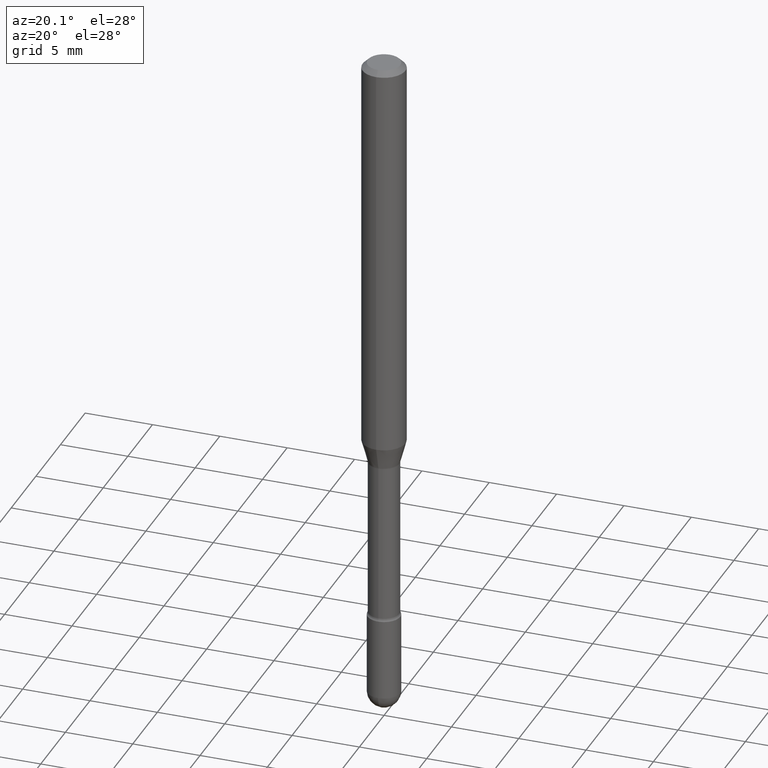
[diagram: clean part render]
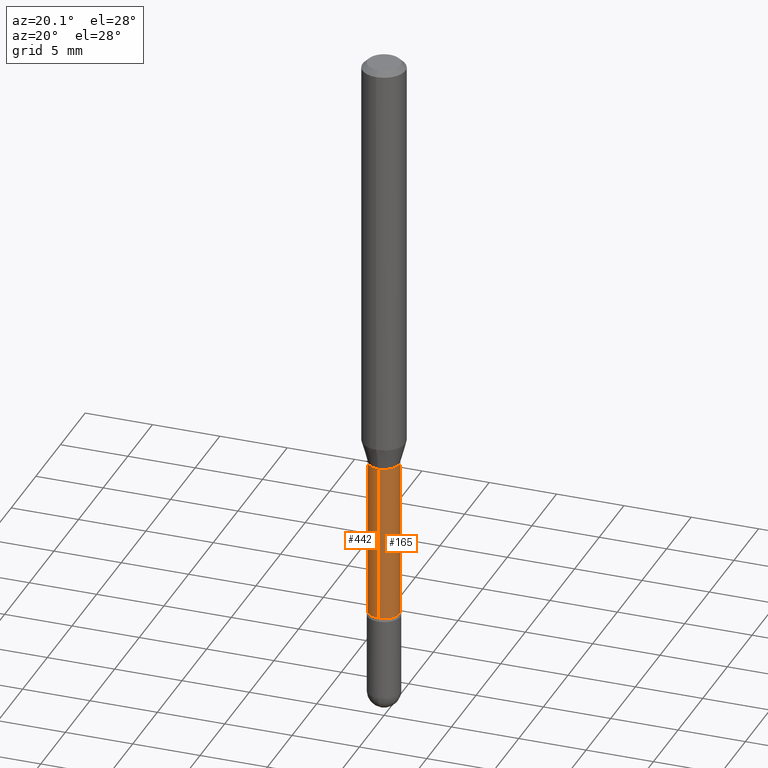
[diagram: same view with one multi-face feature highlighted, each face labeled with its STEP entity id]
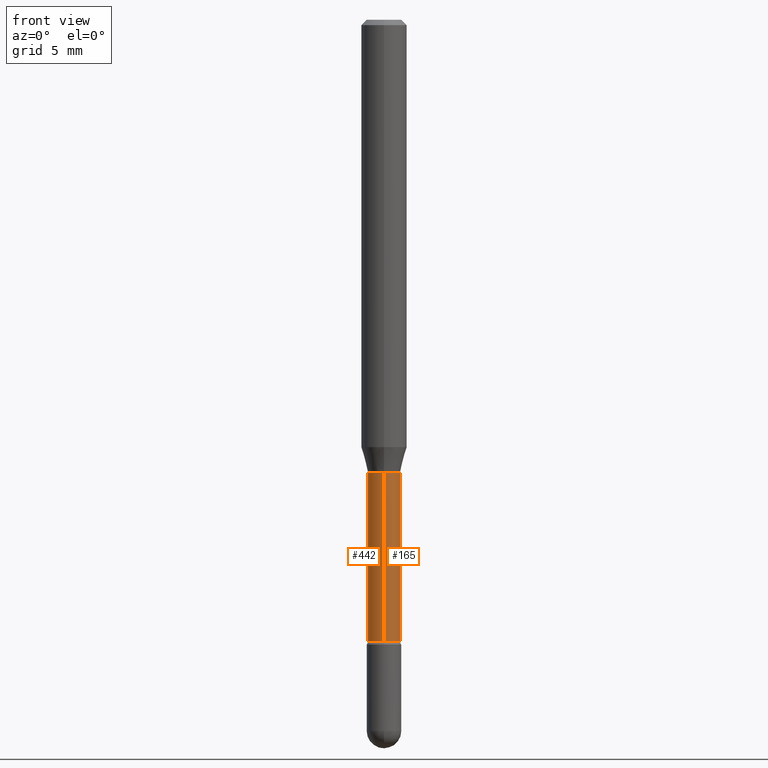
[diagram: same view with one multi-face feature highlighted, each face labeled with its STEP entity id]
A machine part, auxiliary view. The highlighted faces form ONE feature: a constant-radius fillet chain: 2 tangent blend faces with common blend radius 1.1341 mm. The faces share edges in the B-rep.
A second angle (front view) of the same feature is appended — it is thin or edge-on in the first view.
Their STEP definitions:
[1] entity #442 (Cylinder):
#7 = FACE_OUTER_BOUND ( 'NONE', #467, .T. ) ;
#12 = CARTESIAN_POINT ( 'NONE',  ( 3.172573315169266568E-16, 0.04464999999999567232, -1.241974787463811181 ) ) ;
#14 = ORIENTED_EDGE ( 'NONE', *, *, #401, .F. ) ;
#41 = DIRECTION ( 'NONE',  ( -6.982962677686265922E-15, -1.000000000000000000, 6.118360568117042054E-15 ) ) ;
#59 = VERTEX_POINT ( 'NONE', #184 ) ;
#89 = DIRECTION ( 'NONE',  ( -2.445459523208563077E-29, 3.491494632593953152E-15, 1.000000000000000000 ) ) ;
#93 = ORIENTED_EDGE ( 'NONE', *, *, #104, .F. ) ;
#99 = ORIENTED_EDGE ( 'NONE', *, *, #429, .T. ) ;
#101 = LINE ( 'NONE', #391, #213 ) ;
#104 = EDGE_CURVE ( 'NONE', #175, #59, #544, .T. ) ;
#111 = DIRECTION ( 'NONE',  ( -6.982962677686265922E-15, -1.000000000000000000, 6.118360568117049942E-15 ) ) ;
#135 = DIRECTION ( 'NONE',  ( -6.982962677686265922E-15, -1.000000000000000000, 3.491494632593953547E-15 ) ) ;
#174 = CARTESIAN_POINT ( 'NONE',  ( 3.172573315168849457E-16, 0.04465000000000003688, 3.221781635459259007E-16 ) ) ;
#175 = VERTEX_POINT ( 'NONE', #12 ) ;
#176 = CARTESIAN_POINT ( 'NONE',  ( -3.117892835586504621E-16, -0.04465000000000601821, -1.706203551853162415 ) ) ;
#184 = CARTESIAN_POINT ( 'NONE',  ( -3.117892835586614568E-16, -0.04465000000000434593, -1.241974787463810737 ) ) ;
#188 = CARTESIAN_POINT ( 'NONE',  ( 3.037199071588307396E-29, -4.336348304246911430E-15, -1.241974787463810959 ) ) ;
#189 = EDGE_CURVE ( 'NONE', #411, #59, #101, .T. ) ;
#213 = VECTOR ( 'NONE', #298, 39.37007874015748143 ) ;
#219 = CYLINDRICAL_SURFACE ( 'NONE', #444, 0.04465000000000003688 ) ;
#245 = ORIENTED_EDGE ( 'NONE', *, *, #189, .T. ) ;
#293 = VERTEX_POINT ( 'NONE', #379 ) ;
#298 = DIRECTION ( 'NONE',  ( -2.445459523208563077E-29, 3.491494632593953152E-15, 1.000000000000000000 ) ) ;
#301 = CARTESIAN_POINT ( 'NONE',  ( 4.172451724411591816E-29, -5.957200543408056357E-15, -1.706203551853162859 ) ) ;
#305 = DIRECTION ( 'NONE',  ( -2.445459523208563077E-29, 3.491494632593953152E-15, 1.000000000000000000 ) ) ;
#321 = AXIS2_PLACEMENT_3D ( 'NONE', #188, #365, #111 ) ;
#349 = CIRCLE ( 'NONE', #399, 0.04465000000000006464 ) ;
#365 = DIRECTION ( 'NONE',  ( -2.445459523208563077E-29, 3.491494632593953152E-15, 1.000000000000000000 ) ) ;
#379 = CARTESIAN_POINT ( 'NONE',  ( 3.273825655015081526E-16, 0.04464999999999410413, -1.706203551853163081 ) ) ;
#391 = CARTESIAN_POINT ( 'NONE',  ( -3.117892835586920252E-16, -0.04465000000000003688, 6.339686342365662258E-16 ) ) ;
#394 = LINE ( 'NONE', #174, #523 ) ;
#399 = AXIS2_PLACEMENT_3D ( 'NONE', #301, #305, #41 ) ;
#401 = EDGE_CURVE ( 'NONE', #293, #175, #394, .T. ) ;
#411 = VERTEX_POINT ( 'NONE', #176 ) ;
#429 = EDGE_CURVE ( 'NONE', #293, #411, #349, .T. ) ;
#442 = ADVANCED_FACE ( 'NONE', ( #7 ), #219, .T. ) ;
#444 = AXIS2_PLACEMENT_3D ( 'NONE', #519, #89, #135 ) ;
#467 = EDGE_LOOP ( 'NONE', ( #14, #99, #245, #93 ) ) ;
#519 = CARTESIAN_POINT ( 'NONE',  ( -1.169113584055446105E-44, 1.669184350826100908E-30, 4.780733988912460139E-16 ) ) ;
#523 = VECTOR ( 'NONE', #561, 39.37007874015748143 ) ;
#544 = CIRCLE ( 'NONE', #321, 0.04465000000000000913 ) ;
#561 = DIRECTION ( 'NONE',  ( -2.445459523208563077E-29, 3.491494632593953152E-15, 1.000000000000000000 ) ) ;
[2] entity #165 (Cylinder):
#11 = EDGE_CURVE ( 'NONE', #59, #175, #224, .T. ) ;
#12 = CARTESIAN_POINT ( 'NONE',  ( 3.172573315169266568E-16, 0.04464999999999567232, -1.241974787463811181 ) ) ;
#23 = CARTESIAN_POINT ( 'NONE',  ( -1.169113584055446105E-44, 1.669184350826100908E-30, 4.780733988912460139E-16 ) ) ;
#53 = CYLINDRICAL_SURFACE ( 'NONE', #169, 0.04465000000000003688 ) ;
#54 = ORIENTED_EDGE ( 'NONE', *, *, #11, .F. ) ;
#56 = CARTESIAN_POINT ( 'NONE',  ( 3.037199071588307396E-29, -4.336348304246911430E-15, -1.241974787463810959 ) ) ;
#59 = VERTEX_POINT ( 'NONE', #184 ) ;
#101 = LINE ( 'NONE', #391, #213 ) ;
#165 = ADVANCED_FACE ( 'NONE', ( #534 ), #53, .T. ) ;
#169 = AXIS2_PLACEMENT_3D ( 'NONE', #23, #235, #227 ) ;
#174 = CARTESIAN_POINT ( 'NONE',  ( 3.172573315168849457E-16, 0.04465000000000003688, 3.221781635459259007E-16 ) ) ;
#175 = VERTEX_POINT ( 'NONE', #12 ) ;
#176 = CARTESIAN_POINT ( 'NONE',  ( -3.117892835586504621E-16, -0.04465000000000601821, -1.706203551853162415 ) ) ;
#184 = CARTESIAN_POINT ( 'NONE',  ( -3.117892835586614568E-16, -0.04465000000000434593, -1.241974787463810737 ) ) ;
#189 = EDGE_CURVE ( 'NONE', #411, #59, #101, .T. ) ;
#213 = VECTOR ( 'NONE', #298, 39.37007874015748143 ) ;
#224 = CIRCLE ( 'NONE', #377, 0.04465000000000000913 ) ;
#227 = DIRECTION ( 'NONE',  ( -6.982962677686265922E-15, -1.000000000000000000, 3.491494632593953547E-15 ) ) ;
#235 = DIRECTION ( 'NONE',  ( -2.445459523208563077E-29, 3.491494632593953152E-15, 1.000000000000000000 ) ) ;
#263 = EDGE_CURVE ( 'NONE', #411, #293, #303, .T. ) ;
#293 = VERTEX_POINT ( 'NONE', #379 ) ;
#298 = DIRECTION ( 'NONE',  ( -2.445459523208563077E-29, 3.491494632593953152E-15, 1.000000000000000000 ) ) ;
#299 = ORIENTED_EDGE ( 'NONE', *, *, #401, .T. ) ;
#303 = CIRCLE ( 'NONE', #452, 0.04465000000000006464 ) ;
#341 = CARTESIAN_POINT ( 'NONE',  ( 4.172451724411591816E-29, -5.957200543408056357E-15, -1.706203551853162859 ) ) ;
#373 = DIRECTION ( 'NONE',  ( -6.982962677686265922E-15, -1.000000000000000000, 6.118360568117042054E-15 ) ) ;
#377 = AXIS2_PLACEMENT_3D ( 'NONE', #56, #450, #410 ) ;
#379 = CARTESIAN_POINT ( 'NONE',  ( 3.273825655015081526E-16, 0.04464999999999410413, -1.706203551853163081 ) ) ;
#380 = EDGE_LOOP ( 'NONE', ( #509, #299, #54, #433 ) ) ;
#391 = CARTESIAN_POINT ( 'NONE',  ( -3.117892835586920252E-16, -0.04465000000000003688, 6.339686342365662258E-16 ) ) ;
#394 = LINE ( 'NONE', #174, #523 ) ;
#401 = EDGE_CURVE ( 'NONE', #293, #175, #394, .T. ) ;
#410 = DIRECTION ( 'NONE',  ( -6.982962677686265922E-15, -1.000000000000000000, 6.118360568117049942E-15 ) ) ;
#411 = VERTEX_POINT ( 'NONE', #176 ) ;
#433 = ORIENTED_EDGE ( 'NONE', *, *, #189, .F. ) ;
#450 = DIRECTION ( 'NONE',  ( -2.445459523208563077E-29, 3.491494632593953152E-15, 1.000000000000000000 ) ) ;
#452 = AXIS2_PLACEMENT_3D ( 'NONE', #341, #459, #373 ) ;
#459 = DIRECTION ( 'NONE',  ( -2.445459523208563077E-29, 3.491494632593953152E-15, 1.000000000000000000 ) ) ;
#509 = ORIENTED_EDGE ( 'NONE', *, *, #263, .T. ) ;
#523 = VECTOR ( 'NONE', #561, 39.37007874015748143 ) ;
#534 = FACE_OUTER_BOUND ( 'NONE', #380, .T. ) ;
#561 = DIRECTION ( 'NONE',  ( -2.445459523208563077E-29, 3.491494632593953152E-15, 1.000000000000000000 ) ) ;